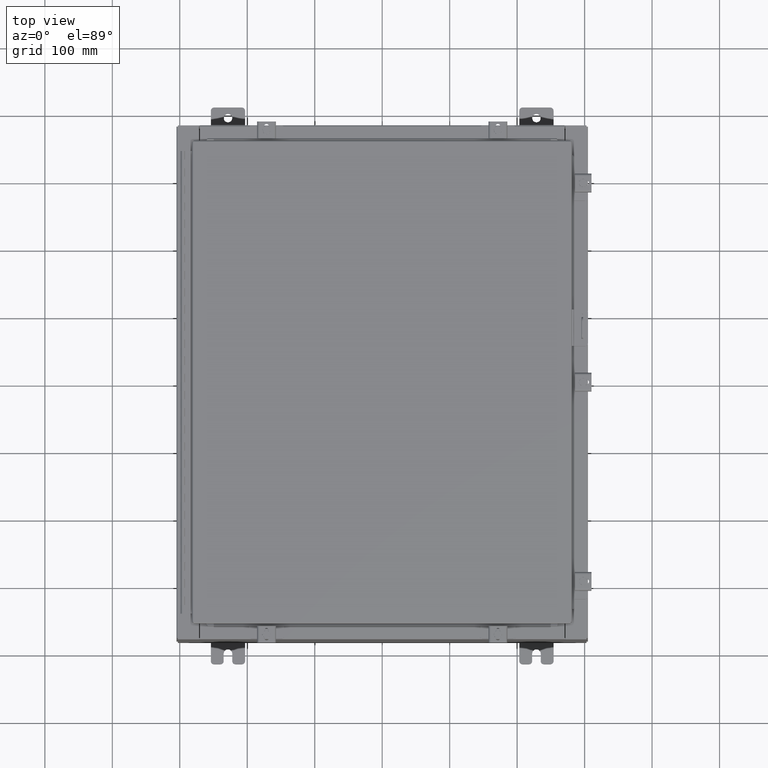
[diagram: clean part render]
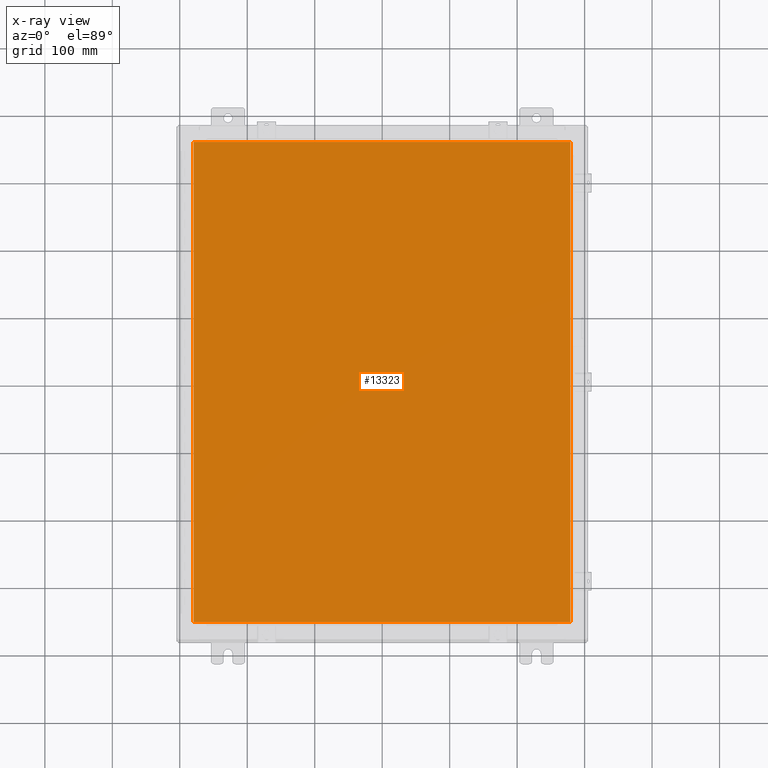
[diagram: x-ray — body ghosted, one internal face saturated and labeled with its STEP entity id]
A machine part, top view, then the same camera in x-ray: the body is ghosted and one INTERNAL B-rep face — a face not visible from any outside direction — is saturated and labeled: STEP entity #13323.
In plain terms, the highlighted planar face has unit normal (0, 0, -1).
Its self-contained STEP definition (entity closure, byte-faithful):
#174 = VERTEX_POINT ( 'NONE', #7933 ) ;
#1601 = EDGE_CURVE ( 'NONE', #174, #6038, #27255, .T. ) ;
#1927 = CARTESIAN_POINT ( 'NONE',  ( -10.99030000000000000, 14.00629999999999800, -0.07470000000000000300 ) ) ;
#4800 = CARTESIAN_POINT ( 'NONE',  ( 10.99030000000000000, -14.00629999999999800, -0.07470000000000019700 ) ) ;
#5911 = CARTESIAN_POINT ( 'NONE',  ( -10.99030000000000000, 14.00630000000000100, -0.07470000000000019700 ) ) ;
#6038 = VERTEX_POINT ( 'NONE', #1927 ) ;
#6267 = CARTESIAN_POINT ( 'NONE',  ( 10.99030000000000000, -14.00629999999999800, -0.07470000000000000300 ) ) ;
#6911 = VERTEX_POINT ( 'NONE', #24000 ) ;
#7379 = VECTOR ( 'NONE', #23388, 39.37007874015748100 ) ;
#7933 = CARTESIAN_POINT ( 'NONE',  ( 10.99030000000000000, 14.00629999999999800, -0.07470000000000000300 ) ) ;
#8113 = VECTOR ( 'NONE', #31021, 39.37007874015748100 ) ;
#8282 = LINE ( 'NONE', #5911, #7379 ) ;
#8738 = FACE_OUTER_BOUND ( 'NONE', #33788, .T. ) ;
#11043 = ORIENTED_EDGE ( 'NONE', *, *, #22662, .F. ) ;
#13323 = ADVANCED_FACE ( 'NONE', ( #8738 ), #33646, .T. ) ;
#14409 = ORIENTED_EDGE ( 'NONE', *, *, #27381, .F. ) ;
#15455 = VERTEX_POINT ( 'NONE', #6267 ) ;
#16102 = ORIENTED_EDGE ( 'NONE', *, *, #32774, .F. ) ;
#16266 = CARTESIAN_POINT ( 'NONE',  ( 0.0000000000000000000, 0.0000000000000000000, -0.07470000000000000300 ) ) ;
#18103 = CARTESIAN_POINT ( 'NONE',  ( 10.99030000000000000, 14.00629999999999800, -0.07470000000000019700 ) ) ;
#18678 = VECTOR ( 'NONE', #29164, 39.37007874015748100 ) ;
#19210 = DIRECTION ( 'NONE',  ( -1.000000000000000000, 0.0000000000000000000, -0.0000000000000000000 ) ) ;
#22662 = EDGE_CURVE ( 'NONE', #6038, #6911, #8282, .T. ) ;
#23388 = DIRECTION ( 'NONE',  ( 0.0000000000000000000, -1.000000000000000000, 0.0000000000000000000 ) ) ;
#24000 = CARTESIAN_POINT ( 'NONE',  ( -10.99030000000000000, -14.00629999999999600, -0.07470000000000000300 ) ) ;
#27255 = LINE ( 'NONE', #18103, #18678 ) ;
#27381 = EDGE_CURVE ( 'NONE', #15455, #174, #36191, .T. ) ;
#28077 = CARTESIAN_POINT ( 'NONE',  ( -10.99029999999999600, -14.00629999999999800, -0.07470000000000019700 ) ) ;
#28471 = VECTOR ( 'NONE', #30922, 39.37007874015748100 ) ;
#29164 = DIRECTION ( 'NONE',  ( -1.000000000000000000, -0.0000000000000000000, -0.0000000000000000000 ) ) ;
#30130 = AXIS2_PLACEMENT_3D ( 'NONE', #16266, #36514, #19210 ) ;
#30922 = DIRECTION ( 'NONE',  ( 0.0000000000000000000, 1.000000000000000000, 0.0000000000000000000 ) ) ;
#31021 = DIRECTION ( 'NONE',  ( 1.000000000000000000, -0.0000000000000000000, -0.0000000000000000000 ) ) ;
#31247 = LINE ( 'NONE', #28077, #8113 ) ;
#32774 = EDGE_CURVE ( 'NONE', #6911, #15455, #31247, .T. ) ;
#33646 = PLANE ( 'NONE',  #30130 ) ;
#33788 = EDGE_LOOP ( 'NONE', ( #14409, #16102, #11043, #37421 ) ) ;
#36191 = LINE ( 'NONE', #4800, #28471 ) ;
#36514 = DIRECTION ( 'NONE',  ( 0.0000000000000000000, 0.0000000000000000000, -1.000000000000000000 ) ) ;
#37421 = ORIENTED_EDGE ( 'NONE', *, *, #1601, .F. ) ;